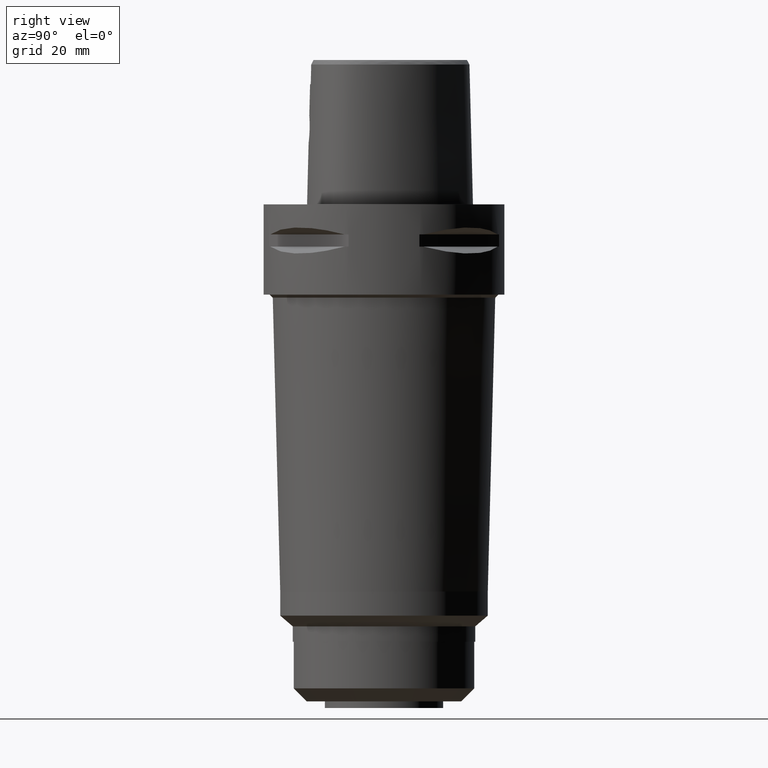
[diagram: clean part render]
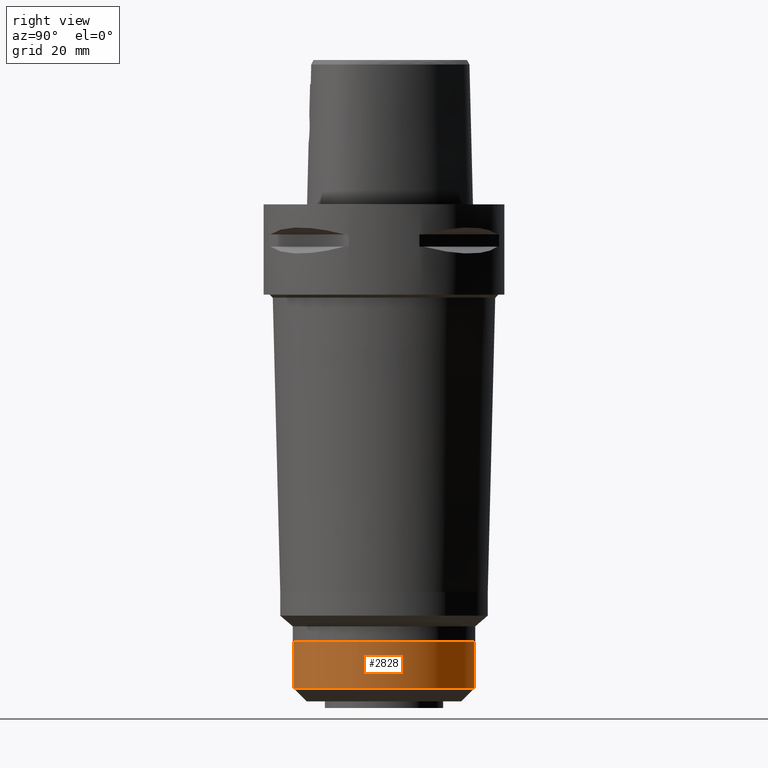
[diagram: same view with one face highlighted and labeled with its STEP entity id]
A machine part, right view. The second image highlights one B-rep face of the part: STEP entity #2828.
In plain terms, the highlighted cylindrical surface (partial cylindrical patch) has radius 30 mm, axis along (0, 0, -1).
Its self-contained STEP definition (entity closure, byte-faithful):
#678=CARTESIAN_POINT('',(0.E0,0.E0,-1.454E2));
#679=DIRECTION('',(0.E0,0.E0,-1.E0));
#680=DIRECTION('',(0.E0,1.E0,0.E0));
#681=AXIS2_PLACEMENT_3D('',#678,#679,#680);
#686=DIRECTION('',(0.E0,0.E0,-1.E0));
#687=VECTOR('',#686,1.55E1);
#688=CARTESIAN_POINT('',(0.E0,-3.E1,-1.454E2));
#689=LINE('',#688,#687);
#693=DIRECTION('',(0.E0,0.E0,-1.E0));
#694=VECTOR('',#693,1.55E1);
#695=CARTESIAN_POINT('',(0.E0,3.E1,-1.454E2));
#696=LINE('',#695,#694);
#707=CARTESIAN_POINT('',(0.E0,-1.996786606010E-14,-1.609E2));
#708=DIRECTION('',(0.E0,0.E0,1.E0));
#709=DIRECTION('',(0.E0,-1.E0,0.E0));
#710=AXIS2_PLACEMENT_3D('',#707,#708,#709);
#1699=CARTESIAN_POINT('',(0.E0,-3.E1,-1.454E2));
#1700=CARTESIAN_POINT('',(0.E0,3.E1,-1.454E2));
#1701=VERTEX_POINT('',#1699);
#1702=VERTEX_POINT('',#1700);
#1703=CARTESIAN_POINT('',(0.E0,3.E1,-1.609E2));
#1704=VERTEX_POINT('',#1703);
#1705=CARTESIAN_POINT('',(0.E0,-3.E1,-1.609E2));
#1706=VERTEX_POINT('',#1705);
#2816=CARTESIAN_POINT('',(0.E0,0.E0,8.37E0));
#2817=DIRECTION('',(0.E0,0.E0,-1.E0));
#2818=DIRECTION('',(0.E0,-1.E0,0.E0));
#2819=AXIS2_PLACEMENT_3D('',#2816,#2817,#2818);
#2820=CYLINDRICAL_SURFACE('',#2819,3.E1);
#2821=ORIENTED_EDGE('',*,*,#2806,.T.);
#2823=ORIENTED_EDGE('',*,*,#2822,.F.);
#2824=ORIENTED_EDGE('',*,*,#2809,.F.);
#2825=ORIENTED_EDGE('',*,*,#2796,.F.);
#2826=EDGE_LOOP('',(#2821,#2823,#2824,#2825));
#2827=FACE_OUTER_BOUND('',#2826,.F.);
#682=CIRCLE('',#681,3.E1);
#711=CIRCLE('',#710,3.E1);
#2796=EDGE_CURVE('',#1702,#1701,#682,.T.);
#2806=EDGE_CURVE('',#1702,#1704,#696,.T.);
#2809=EDGE_CURVE('',#1701,#1706,#689,.T.);
#2822=EDGE_CURVE('',#1706,#1704,#711,.T.);
#2828=ADVANCED_FACE('',(#2827),#2820,.T.);